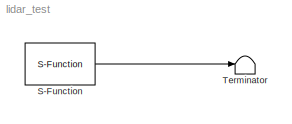
MODEL lidar_test
KIND model
BLOCK [S-Function] S-Function
  EnableBusSupport = off
  FunctionName = lidarOnly
  Ports = [0, 1]
BLOCK [Terminator] Terminator
LINE S-Function:1 -> Terminator:1
